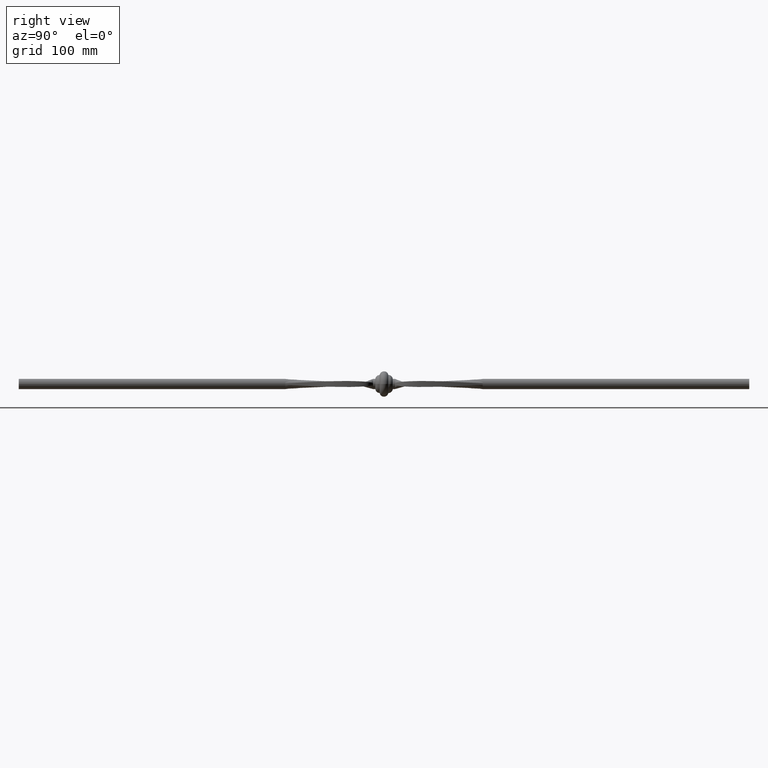
[diagram: clean part render]
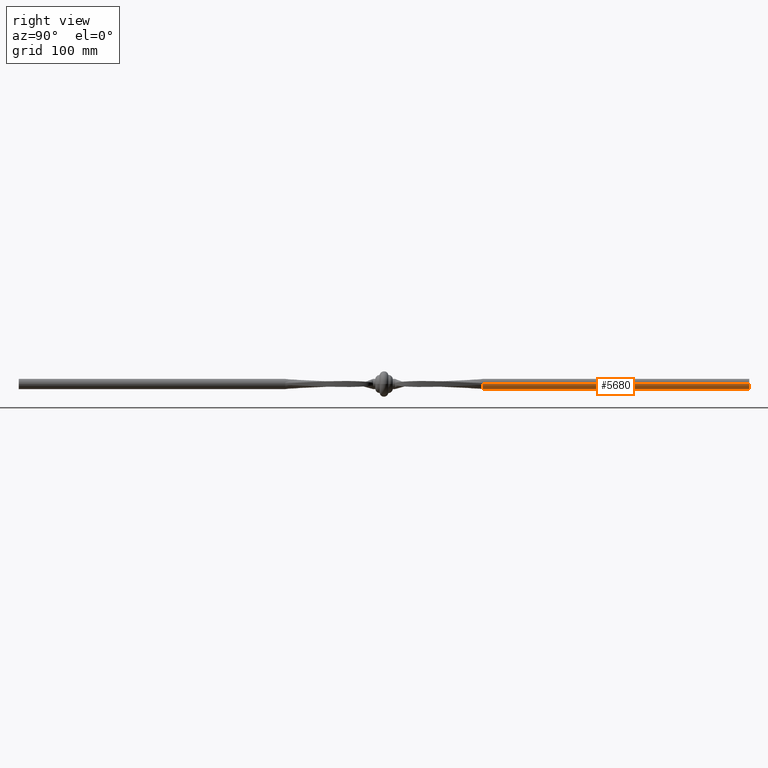
[diagram: same view with one face highlighted and labeled with its STEP entity id]
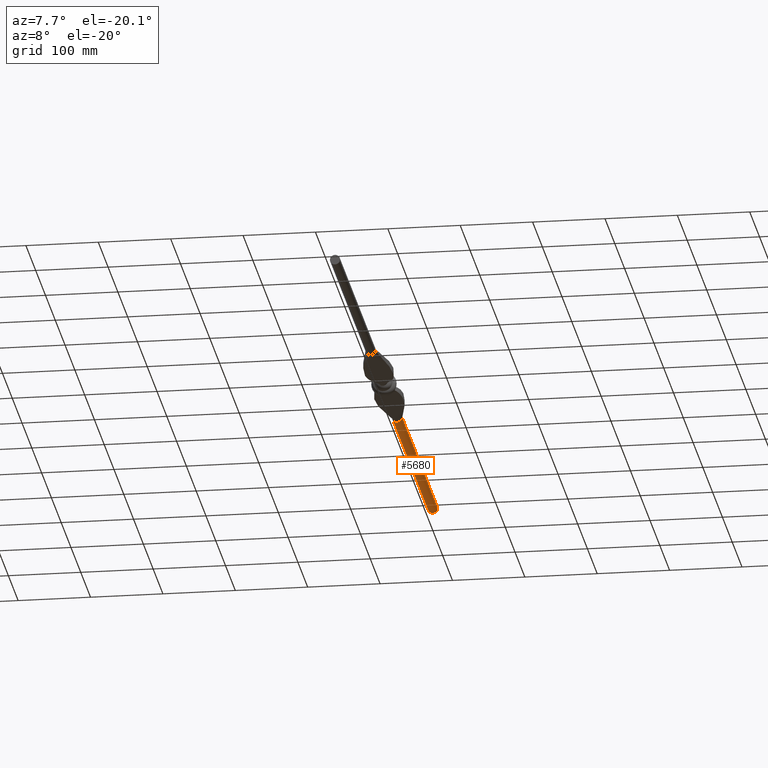
[diagram: same view with one face highlighted and labeled with its STEP entity id]
A machine part, right view. The second image highlights one B-rep face of the part: STEP entity #5680.
A second angle (auxiliary view) of the same face is appended — the face is thin or edge-on in the first view.
In plain terms, the highlighted cylindrical surface (edge-blend (fillet) strip) has radius 7 mm, axis along (0, -1, -0).
Its self-contained STEP definition (entity closure, byte-faithful):
#26 = CIRCLE ( 'NONE', #4219, 7.000000000000000000 ) ;
#59 = CARTESIAN_POINT ( 'NONE',  ( -6.999998736978388258, 135.0000000000000000, 1.800875171035335239E-15 ) ) ;
#389 = DIRECTION ( 'NONE',  ( -1.053835910555366882E-15, 1.000000000000000000, 0.000000000000000000 ) ) ;
#428 = DIRECTION ( 'NONE',  ( -1.053835910555366882E-15, 1.000000000000000000, 0.000000000000000000 ) ) ;
#619 = VERTEX_POINT ( 'NONE', #9060 ) ;
#713 = VERTEX_POINT ( 'NONE', #7566 ) ;
#764 = FACE_OUTER_BOUND ( 'NONE', #4091, .T. ) ;
#818 = ORIENTED_EDGE ( 'NONE', *, *, #9126, .F. ) ;
#1500 = ORIENTED_EDGE ( 'NONE', *, *, #1910, .T. ) ;
#1646 = DIRECTION ( 'NONE',  ( 1.053835910555366882E-15, -1.000000000000000000, -0.000000000000000000 ) ) ;
#1670 = CARTESIAN_POINT ( 'NONE',  ( -5.477828417988082030E-13, 519.7989898732233769, 0.000000000000000000 ) ) ;
#1800 = DIRECTION ( 'NONE',  ( -1.000000000000000000, 0.000000000000000000, 0.000000000000000000 ) ) ;
#1837 = CARTESIAN_POINT ( 'NONE',  ( -1.422678479249745492E-13, 134.9999999999999716, 0.000000000000000000 ) ) ;
#1868 = VERTEX_POINT ( 'NONE', #6404 ) ;
#1910 = EDGE_CURVE ( 'NONE', #1868, #2257, #26, .T. ) ;
#2134 = CARTESIAN_POINT ( 'NONE',  ( -5.269179552776833920E-13, 500.0000000000000000, 0.000000000000000000 ) ) ;
#2178 = CIRCLE ( 'NONE', #4803, 7.000000000000000000 ) ;
#2207 = VECTOR ( 'NONE', #2444, 1000.000000000000000 ) ;
#2257 = VERTEX_POINT ( 'NONE', #4926 ) ;
#2349 = DIRECTION ( 'NONE',  ( 1.053835910555366882E-15, -1.000000000000000000, -0.000000000000000000 ) ) ;
#2444 = DIRECTION ( 'NONE',  ( 1.053835910555366882E-15, -1.000000000000000000, -0.000000000000000000 ) ) ;
#2487 = ORIENTED_EDGE ( 'NONE', *, *, #2519, .T. ) ;
#2515 = AXIS2_PLACEMENT_3D ( 'NONE', #3198, #8566, #7065 ) ;
#2519 = EDGE_CURVE ( 'NONE', #619, #1868, #9558, .T. ) ;
#2582 = EDGE_CURVE ( 'NONE', #713, #9871, #2178, .T. ) ;
#2829 = CARTESIAN_POINT ( 'NONE',  ( -7.000000000000524913, 500.0000000000000000, 8.572527594031705904E-16 ) ) ;
#2837 = AXIS2_PLACEMENT_3D ( 'NONE', #1670, #1646, #7801 ) ;
#2891 = EDGE_CURVE ( 'NONE', #619, #5957, #8155, .T. ) ;
#3198 = CARTESIAN_POINT ( 'NONE',  ( -1.422678479249745492E-13, 134.9999999999999716, 0.000000000000000000 ) ) ;
#3209 = ORIENTED_EDGE ( 'NONE', *, *, #2891, .F. ) ;
#3447 = CIRCLE ( 'NONE', #2515, 7.000000000000000000 ) ;
#3628 = DIRECTION ( 'NONE',  ( 0.000000000000000000, 1.000000000000000000, 0.000000000000000000 ) ) ;
#3667 = DIRECTION ( 'NONE',  ( 0.000000000000000000, 0.000000000000000000, 1.000000000000000000 ) ) ;
#3721 = VECTOR ( 'NONE', #2349, 1000.000000000000000 ) ;
#4091 = EDGE_LOOP ( 'NONE', ( #818, #3209, #2487, #1500, #5558, #8683 ) ) ;
#4219 = AXIS2_PLACEMENT_3D ( 'NONE', #5599, #389, #1800 ) ;
#4803 = AXIS2_PLACEMENT_3D ( 'NONE', #1837, #428, #7281 ) ;
#4926 = CARTESIAN_POINT ( 'NONE',  ( 6.856844249121119006, 135.0000000000000000, -1.411703331054624977 ) ) ;
#4944 = EDGE_CURVE ( 'NONE', #2257, #713, #3447, .T. ) ;
#5558 = ORIENTED_EDGE ( 'NONE', *, *, #4944, .T. ) ;
#5599 = CARTESIAN_POINT ( 'NONE',  ( -1.422678479249745492E-13, 134.9999999999999716, 0.000000000000000000 ) ) ;
#5680 = ADVANCED_FACE ( 'NONE', ( #764 ), #8654, .T. ) ;
#5957 = VERTEX_POINT ( 'NONE', #2829 ) ;
#6189 = CARTESIAN_POINT ( 'NONE',  ( 6.999999999999451106, 519.7989898732233769, 0.000000000000000000 ) ) ;
#6220 = CARTESIAN_POINT ( 'NONE',  ( -7.000000000000547118, 519.7989898732233769, 8.572527594031472204E-16 ) ) ;
#6404 = CARTESIAN_POINT ( 'NONE',  ( 6.999998736978104041, 135.0000000000000000, 4.441785358619756095E-15 ) ) ;
#7065 = DIRECTION ( 'NONE',  ( -1.000000000000000000, 0.000000000000000000, 0.000000000000000000 ) ) ;
#7281 = DIRECTION ( 'NONE',  ( -1.000000000000000000, 0.000000000000000000, 0.000000000000000000 ) ) ;
#7566 = CARTESIAN_POINT ( 'NONE',  ( -6.856823732075352673, 135.0000000000000000, -1.411699209520940412 ) ) ;
#7801 = DIRECTION ( 'NONE',  ( 1.000000000000000000, 0.000000000000000000, 0.000000000000000000 ) ) ;
#8155 = CIRCLE ( 'NONE', #9797, 6.999999999999999112 ) ;
#8566 = DIRECTION ( 'NONE',  ( -1.053835910555366882E-15, 1.000000000000000000, 0.000000000000000000 ) ) ;
#8654 = CYLINDRICAL_SURFACE ( 'NONE', #2837, 6.999999999999999112 ) ;
#8683 = ORIENTED_EDGE ( 'NONE', *, *, #2582, .T. ) ;
#9060 = CARTESIAN_POINT ( 'NONE',  ( 6.999999999999472422, 500.0000000000000000, 0.000000000000000000 ) ) ;
#9126 = EDGE_CURVE ( 'NONE', #5957, #9871, #9736, .T. ) ;
#9558 = LINE ( 'NONE', #6189, #3721 ) ;
#9736 = LINE ( 'NONE', #6220, #2207 ) ;
#9797 = AXIS2_PLACEMENT_3D ( 'NONE', #2134, #3628, #3667 ) ;
#9871 = VERTEX_POINT ( 'NONE', #59 ) ;